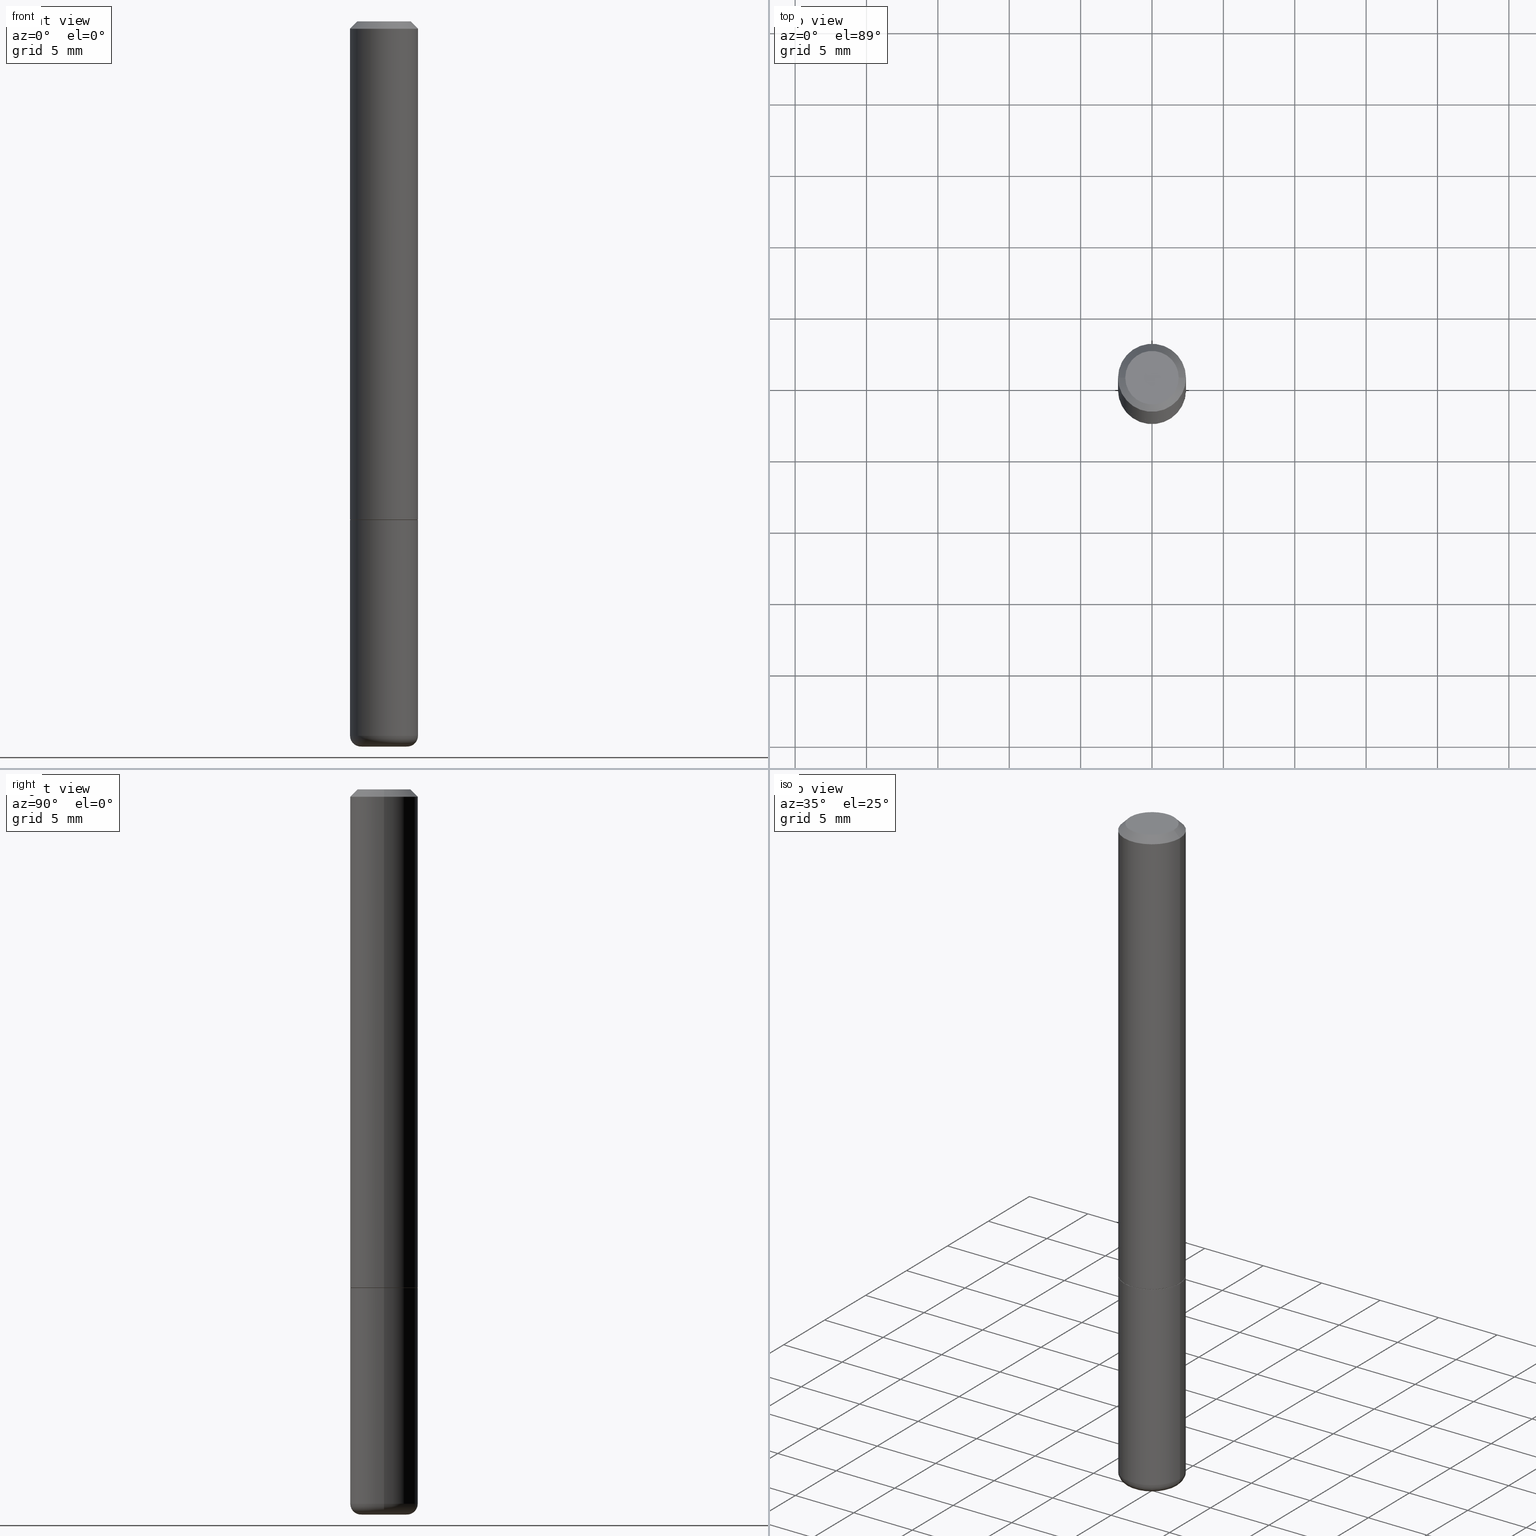
[diagram: canonical four-view strip — front | top / right | iso, engineering-drawing reading convention]
A machine part, canonical four-view strip (front | top / right | iso — engineering-drawing reading convention). The complete STEP part file that produces these views, byte-faithful:
ISO-10303-21;
HEADER;
FILE_DESCRIPTION (( 'STEP AP203' ),
    '1' );
FILE_NAME ('38013.STEP',
    '2023-03-22T20:13:49',
    ( '' ),
    ( '' ),
    'SwSTEP 2.0',
    'SolidWorks 2022',
    '' );
FILE_SCHEMA (( 'CONFIG_CONTROL_DESIGN' ));
ENDSEC;

DATA;
#1 = FACE_OUTER_BOUND ( 'NONE', #280, .T. ) ;
#2 = DIRECTION ( 'NONE',  ( -1.000000000000000000, 6.982962677686265922E-15, 0.000000000000000000 ) ) ;
#3 = CARTESIAN_POINT ( 'NONE',  ( 1.011612679909314432E-27, -1.444314801770192841E-13, -41.36682002856548479 ) ) ;
#4 = DATE_AND_TIME ( #437, #41 ) ;
#5 = CARTESIAN_POINT ( 'NONE',  ( 4.890937612370283668E-31, -6.982962677686305168E-17, -0.02000000000000004205 ) ) ;
#6 = CARTESIAN_POINT ( 'NONE',  ( 0.09375000000000001388, -5.455439591942412434E-15, -1.375000000000000000 ) ) ;
#7 = DIRECTION ( 'NONE',  ( -2.445468806185136597E-29, 3.491481338843145583E-15, 1.000000000000000000 ) ) ;
#8 = AXIS2_PLACEMENT_3D ( 'NONE', #199, #17, #128 ) ;
#9 =( GEOMETRIC_REPRESENTATION_CONTEXT ( 3 ) GLOBAL_UNCERTAINTY_ASSIGNED_CONTEXT ( ( #343 ) ) GLOBAL_UNIT_ASSIGNED_CONTEXT ( ( #396, #168, #131 ) ) REPRESENTATION_CONTEXT ( 'NONE', 'WORKASPACE' ) );
#10 = VERTEX_POINT ( 'NONE', #58 ) ;
#11 = CARTESIAN_POINT ( 'NONE',  ( 0.09374999999999981959, -7.130013140679429031E-16, -0.02000000000000004205 ) ) ;
#12 = DIRECTION ( 'NONE',  ( -1.000000000000000000, 6.982962677686267499E-15, 0.000000000000000000 ) ) ;
#13 = PRODUCT_RELATED_PRODUCT_CATEGORY ( 'detail', '', ( #260 ) ) ;
#14 = VERTEX_POINT ( 'NONE', #67 ) ;
#15 = CARTESIAN_POINT ( 'NONE',  ( 4.890937612370273194E-29, -6.982962677686291165E-15, -2.000000000000000000 ) ) ;
#16 = EDGE_LOOP ( 'NONE', ( #433, #271, #330, #378 ) ) ;
#17 = DIRECTION ( 'NONE',  ( 2.438088387897960049E-29, -3.491481338843145188E-15, -1.000000000000000000 ) ) ;
#18 = ORIENTED_EDGE ( 'NONE', *, *, #290, .F. ) ;
#19 = VECTOR ( 'NONE', #393, 39.37007874015748854 ) ;
#20 = PERSON_AND_ORGANIZATION ( #182, #273 ) ;
#21 = AXIS2_PLACEMENT_3D ( 'NONE', #255, #122, #2 ) ;
#22 = CARTESIAN_POINT ( 'NONE',  ( -0.09374999999999991673, 6.661338147750933326E-16, -4.611501647113969791E-30 ) ) ;
#23 = EDGE_CURVE ( 'NONE', #93, #312, #208, .T. ) ;
#24 = CARTESIAN_POINT ( 'NONE',  ( 0.09274999999999999911, -5.448456629264727208E-15, -1.375000000000000000 ) ) ;
#25 = PERSON_AND_ORGANIZATION ( #182, #273 ) ;
#26 = EDGE_CURVE ( 'NONE', #328, #10, #400, .T. ) ;
#27 = ORIENTED_EDGE ( 'NONE', *, *, #48, .F. ) ;
#28 = CARTESIAN_POINT ( 'NONE',  ( -0.09374999999999988898, 6.661338147750931354E-16, -4.611501647113968390E-30 ) ) ;
#29 = APPROVAL_DATE_TIME ( #375, #144 ) ;
#30 = CALENDAR_DATE ( 2023, 22, 3 ) ;
#31 = CARTESIAN_POINT ( 'NONE',  ( -0.09375000000000001388, -5.173440498747517472E-15, -1.375000000000000000 ) ) ;
#32 = APPROVAL_DATE_TIME ( #72, #197 ) ;
#33 = AXIS2_PLACEMENT_3D ( 'NONE', #225, #262, #420 ) ;
#34 = AXIS2_PLACEMENT_3D ( 'NONE', #107, #382, #71 ) ;
#35 = CC_DESIGN_SECURITY_CLASSIFICATION ( #186, ( #373 ) ) ;
#36 = CARTESIAN_POINT ( 'NONE',  ( 4.890937612370273194E-29, -6.982962677686291165E-15, -2.000000000000000000 ) ) ;
#37 = CARTESIAN_POINT ( 'NONE',  ( 3.362519608504562260E-29, -4.800786840909324930E-15, -1.375000000000000000 ) ) ;
#38 =( LENGTH_UNIT ( ) NAMED_UNIT ( * ) SI_UNIT ( $, .METRE. ) );
#39 = DIRECTION ( 'NONE',  ( -2.445468806185136597E-29, 3.491481338843145583E-15, 1.000000000000000000 ) ) ;
#40 = VECTOR ( 'NONE', #380, 39.37007874015748854 ) ;
#41 = LOCAL_TIME ( 16, 13, 49.00000000000000000, #142 ) ;
#42 = CARTESIAN_POINT ( 'NONE',  ( 5.149934974793610063E-16, 0.07374999999999984346, -2.574967487396814399E-16 ) ) ;
#43 = APPLICATION_CONTEXT ( 'configuration controlled 3d designs of mechanical parts and assemblies' ) ;
#44 = CARTESIAN_POINT ( 'NONE',  ( -8.835394387282807583E-19, -6.971584946974175960E-15, -1.996741288408006909 ) ) ;
#45 = CARTESIAN_POINT ( 'NONE',  ( 0.000000000000000000, 0.000000000000000000, 0.000000000000000000 ) ) ;
#46 = CC_DESIGN_DATE_AND_TIME_ASSIGNMENT ( #4, #289, ( #230 ) ) ;
#47 = LINE ( 'NONE', #323, #19 ) ;
#48 = EDGE_CURVE ( 'NONE', #96, #250, #372, .T. ) ;
#49 = EDGE_LOOP ( 'NONE', ( #261, #68, #264, #138 ) ) ;
#50 = EDGE_CURVE ( 'NONE', #121, #105, #342, .T. ) ;
#51 = EDGE_LOOP ( 'NONE', ( #239, #124, #308 ) ) ;
#52 = FACE_OUTER_BOUND ( 'NONE', #160, .T. ) ;
#53 = ORIENTED_EDGE ( 'NONE', *, *, #399, .T. ) ;
#54 = CIRCLE ( 'NONE', #33, 0.09374999999999997224 ) ;
#55 = APPROVAL_PERSON_ORGANIZATION ( #101, #144, #70 ) ;
#56 = ORIENTED_EDGE ( 'NONE', *, *, #23, .F. ) ;
#57 = APPROVAL_STATUS ( 'not_yet_approved' ) ;
#58 = CARTESIAN_POINT ( 'NONE',  ( -0.09374999999999984734, -5.173440498747517472E-15, -1.970041113957363033 ) ) ;
#59 = COORDINATED_UNIVERSAL_TIME_OFFSET ( 5, 0, .BEHIND. ) ;
#60 = DIRECTION ( 'NONE',  ( 1.000000000000000000, -6.982962677686265922E-15, 4.876176775795935793E-29 ) ) ;
#61 = ORIENTED_EDGE ( 'NONE', *, *, #50, .T. ) ;
#62 = EDGE_CURVE ( 'NONE', #10, #96, #339, .T. ) ;
#63 = CC_DESIGN_PERSON_AND_ORGANIZATION_ASSIGNMENT ( #64, #441, ( #373 ) ) ;
#64 = PERSON_AND_ORGANIZATION ( #182, #273 ) ;
#65 = AXIS2_PLACEMENT_3D ( 'NONE', #370, #211, #340 ) ;
#66 = DATE_AND_TIME ( #275, #125 ) ;
#67 = CARTESIAN_POINT ( 'NONE',  ( 0.09374999999999997224, -5.451948110603567849E-15, -1.373999999999999666 ) ) ;
#68 = ORIENTED_EDGE ( 'NONE', *, *, #62, .T. ) ;
#69 = CARTESIAN_POINT ( 'NONE',  ( 3.362519608504562260E-29, -4.800786840909324930E-15, -1.375000000000000000 ) ) ;
#70 = APPROVAL_ROLE ( '' ) ;
#71 = DIRECTION ( 'NONE',  ( 1.000000000000000000, -6.982962677686267499E-15, 0.000000000000000000 ) ) ;
#72 = DATE_AND_TIME ( #30, #430 ) ;
#73 = DIRECTION ( 'NONE',  ( 7.105427357601001859E-15, 1.000000000000000000, -3.491481338843145583E-15 ) ) ;
#74 = CARTESIAN_POINT ( 'NONE',  ( 3.362519608504562260E-29, -4.800786840909324930E-15, -1.375000000000000000 ) ) ;
#75 = VECTOR ( 'NONE', #316, 39.37007874015748143 ) ;
#76 = CIRCLE ( 'NONE', #286, 0.06217992131271191103 ) ;
#77 = FACE_OUTER_BOUND ( 'NONE', #162, .T. ) ;
#78 = DIRECTION ( 'NONE',  ( -2.445468806185136877E-29, 3.491481338843145188E-15, 1.000000000000000000 ) ) ;
#79 = ADVANCED_BREP_SHAPE_REPRESENTATION ( '38013', ( #413, #258, #201 ), #9 ) ;
#80 = ADVANCED_FACE ( 'NONE', ( #173 ), #314, .T. ) ;
#81 = DIRECTION ( 'NONE',  ( 1.000000000000000000, -6.982962677686264344E-15, 0.000000000000000000 ) ) ;
#82 = EDGE_CURVE ( 'NONE', #210, #356, #381, .T. ) ;
#83 = DIRECTION ( 'NONE',  ( 2.445468806185136597E-29, -3.491481338843145583E-15, -1.000000000000000000 ) ) ;
#84 = FACE_OUTER_BOUND ( 'NONE', #16, .T. ) ;
#85 = DIRECTION ( 'NONE',  ( -2.445468806185136597E-29, 3.491481338843145583E-15, 1.000000000000000000 ) ) ;
#86 = DIRECTION ( 'NONE',  ( -2.445468806185136877E-29, 3.491481338843145188E-15, 1.000000000000000000 ) ) ;
#87 = ORIENTED_EDGE ( 'NONE', *, *, #126, .T. ) ;
#88 = DIRECTION ( 'NONE',  ( -2.445468806185136597E-29, 3.491481338843145583E-15, 1.000000000000000000 ) ) ;
#89 = AXIS2_PLACEMENT_3D ( 'NONE', #179, #73, #347 ) ;
#90 = ORIENTED_EDGE ( 'NONE', *, *, #336, .F. ) ;
#91 = ORIENTED_EDGE ( 'NONE', *, *, #190, .F. ) ;
#92 = PLANE ( 'NONE',  #241 ) ;
#93 = VERTEX_POINT ( 'NONE', #24 ) ;
#94 = CIRCLE ( 'NONE', #284, 0.02999999999999984970 ) ;
#95 = CIRCLE ( 'NONE', #346, 0.07374999999999984346 ) ;
#96 = VERTEX_POINT ( 'NONE', #31 ) ;
#97 = CALENDAR_DATE ( 2023, 22, 3 ) ;
#98 = APPROVAL ( #171, 'UNSPECIFIED' ) ;
#99 = EDGE_LOOP ( 'NONE', ( #282, #194, #414, #202 ) ) ;
#100 = ORIENTED_EDGE ( 'NONE', *, *, #429, .F. ) ;
#101 = PERSON_AND_ORGANIZATION ( #182, #273 ) ;
#102 = CARTESIAN_POINT ( 'NONE',  ( -0.09374999999999981959, 5.848231242562232198E-16, -0.02000000000000004205 ) ) ;
#103 = CIRCLE ( 'NONE', #295, 0.09375000000000001388 ) ;
#104 = VECTOR ( 'NONE', #384, 39.37007874015748854 ) ;
#105 = VERTEX_POINT ( 'NONE', #102 ) ;
#106 = DIRECTION ( 'NONE',  ( 1.000000000000000000, -6.982962677686273021E-15, 0.000000000000000000 ) ) ;
#107 = CARTESIAN_POINT ( 'NONE',  ( 4.890937612370283668E-31, -6.982962677686305168E-17, -0.02000000000000004205 ) ) ;
#108 = LINE ( 'NONE', #114, #104 ) ;
#109 = CIRCLE ( 'NONE', #371, 0.09374999999999997224 ) ;
#110 = DIRECTION ( 'NONE',  ( 1.000000000000000000, -6.982962677686265133E-15, 4.876176775795935793E-29 ) ) ;
#111 = DIRECTION ( 'NONE',  ( -2.445468806185136597E-29, 3.491481338843145583E-15, 1.000000000000000000 ) ) ;
#112 = EDGE_CURVE ( 'NONE', #356, #105, #299, .T. ) ;
#113 = EDGE_CURVE ( 'NONE', #312, #93, #218, .T. ) ;
#114 = CARTESIAN_POINT ( 'NONE',  ( 8.835394388259402362E-19, -6.971584946974175960E-15, -1.996741288408006909 ) ) ;
#115 = CARTESIAN_POINT ( 'NONE',  ( 0.09374999999999991673, -6.546527510330869125E-16, 4.571415727308685602E-30 ) ) ;
#116 = PERSON_AND_ORGANIZATION ( #182, #273 ) ;
#117 = DIRECTION ( 'NONE',  ( 1.000000000000000000, -6.982962677686266711E-15, 4.876176775795935793E-29 ) ) ;
#118 = CIRCLE ( 'NONE', #233, 0.09374999999999984734 ) ;
#119 = DIRECTION ( 'NONE',  ( 1.000000000000000000, -6.982962677686266711E-15, 4.876176775795935793E-29 ) ) ;
#120 = DIRECTION ( 'NONE',  ( 1.000000000000000000, -6.982962677686263555E-15, 4.883557194083111219E-29 ) ) ;
#121 = VERTEX_POINT ( 'NONE', #440 ) ;
#122 = DIRECTION ( 'NONE',  ( 2.445468806185136597E-29, -3.491481338843145583E-15, -1.000000000000000000 ) ) ;
#123 = CONICAL_SURFACE ( 'NONE', #409, 0.09374999999999981959, 0.7853981633974466137 ) ;
#124 = ORIENTED_EDGE ( 'NONE', *, *, #150, .T. ) ;
#125 = LOCAL_TIME ( 16, 13, 49.00000000000000000, #408 ) ;
#126 = EDGE_CURVE ( 'NONE', #250, #96, #103, .T. ) ;
#127 = ORIENTED_EDGE ( 'NONE', *, *, #203, .F. ) ;
#128 = DIRECTION ( 'NONE',  ( -1.000000000000000000, 6.982962677686265922E-15, -4.876176775795935793E-29 ) ) ;
#129 = EDGE_LOOP ( 'NONE', ( #438, #61, #237, #167 ) ) ;
#130 = CC_DESIGN_DATE_AND_TIME_ASSIGNMENT ( #367, #205, ( #186 ) ) ;
#131 =( NAMED_UNIT ( * ) SI_UNIT ( $, .STERADIAN. ) SOLID_ANGLE_UNIT ( ) );
#132 = DIRECTION ( 'NONE',  ( 1.000000000000000000, -6.982962677686260400E-15, 0.000000000000000000 ) ) ;
#133 = ORIENTED_EDGE ( 'NONE', *, *, #290, .T. ) ;
#134 = AXIS2_PLACEMENT_3D ( 'NONE', #161, #195, #221 ) ;
#135 = PERSON_AND_ORGANIZATION_ROLE ( 'design_supplier' ) ;
#136 = EDGE_CURVE ( 'NONE', #360, #210, #95, .T. ) ;
#137 = FACE_OUTER_BOUND ( 'NONE', #302, .T. ) ;
#138 = ORIENTED_EDGE ( 'NONE', *, *, #263, .F. ) ;
#139 = PERSON_AND_ORGANIZATION ( #182, #273 ) ;
#140 = ADVANCED_FACE ( 'NONE', ( #427 ), #272, .F. ) ;
#141 = EDGE_LOOP ( 'NONE', ( #406, #245, #164, #91 ) ) ;
#142 = COORDINATED_UNIVERSAL_TIME_OFFSET ( 5, 0, .BEHIND. ) ;
#143 = EDGE_LOOP ( 'NONE', ( #53, #176, #434, #345 ) ) ;
#144 = APPROVAL ( #214, 'UNSPECIFIED' ) ;
#145 = EDGE_LOOP ( 'NONE', ( #18, #442, #157, #198 ) ) ;
#146 = DIRECTION ( 'NONE',  ( -2.445468806185136597E-29, 3.491481338843145583E-15, 1.000000000000000000 ) ) ;
#147 = APPLICATION_CONTEXT ( 'configuration controlled 3d designs of mechanical parts and assemblies' ) ;
#148 = DIRECTION ( 'NONE',  ( 2.438088387897960049E-29, -3.491481338843145188E-15, -1.000000000000000000 ) ) ;
#149 = CIRCLE ( 'NONE', #297, 0.07374999999999984346 ) ;
#150 = EDGE_CURVE ( 'NONE', #374, #431, #423, .T. ) ;
#151 = ADVANCED_FACE ( 'NONE', ( #257 ), #244, .T. ) ;
#152 = CC_DESIGN_APPROVAL ( #144, ( #230 ) ) ;
#153 = DIRECTION ( 'NONE',  ( -2.445468806185136597E-29, 3.491481338843145583E-15, 1.000000000000000000 ) ) ;
#154 = DIRECTION ( 'NONE',  ( 1.000000000000000000, -6.982962677686263555E-15, 4.883557194083111219E-29 ) ) ;
#155 = DIRECTION ( 'NONE',  ( 2.445468806185136597E-29, -3.491481338843145583E-15, -1.000000000000000000 ) ) ;
#156 = AXIS2_PLACEMENT_3D ( 'NONE', #191, #256, #120 ) ;
#157 = ORIENTED_EDGE ( 'NONE', *, *, #112, .T. ) ;
#158 = CONICAL_SURFACE ( 'NONE', #21, 751.2258538476835383, 1.518436449235074814 ) ;
#159 = CARTESIAN_POINT ( 'NONE',  ( 0.06375000000000000111, -7.323525656838395472E-15, -1.970041113957363033 ) ) ;
#160 = EDGE_LOOP ( 'NONE', ( #87, #362 ) ) ;
#161 = CARTESIAN_POINT ( 'NONE',  ( 0.000000000000000000, 0.000000000000000000, 0.000000000000000000 ) ) ;
#162 = EDGE_LOOP ( 'NONE', ( #337, #248, #267, #27 ) ) ;
#163 = ADVANCED_FACE ( 'NONE', ( #84 ), #123, .T. ) ;
#164 = ORIENTED_EDGE ( 'NONE', *, *, #311, .T. ) ;
#165 = CIRCLE ( 'NONE', #301, 0.06217992131271191103 ) ;
#166 = AXIS2_PLACEMENT_3D ( 'NONE', #287, #88, #110 ) ;
#167 = ORIENTED_EDGE ( 'NONE', *, *, #177, .F. ) ;
#168 =( NAMED_UNIT ( * ) PLANE_ANGLE_UNIT ( ) SI_UNIT ( $, .RADIAN. ) );
#169 = CIRCLE ( 'NONE', #417, 0.09374999999999981959 ) ;
#170 = LOCAL_TIME ( 16, 13, 49.00000000000000000, #303 ) ;
#171 = APPROVAL_STATUS ( 'not_yet_approved' ) ;
#172 = APPROVAL_DATE_TIME ( #66, #98 ) ;
#173 = FACE_OUTER_BOUND ( 'NONE', #99, .T. ) ;
#174 = DIRECTION ( 'NONE',  ( -2.445468806185136877E-29, 3.491481338843145188E-15, 1.000000000000000000 ) ) ;
#175 = PERSON_AND_ORGANIZATION ( #182, #273 ) ;
#176 = ORIENTED_EDGE ( 'NONE', *, *, #385, .T. ) ;
#177 = EDGE_CURVE ( 'NONE', #14, #356, #288, .T. ) ;
#178 = CARTESIAN_POINT ( 'NONE',  ( 3.362519608504562260E-29, -4.800786840909324930E-15, -1.375000000000000000 ) ) ;
#179 = CARTESIAN_POINT ( 'NONE',  ( -0.06375000000000000111, -6.425390792088831816E-15, -1.970041113957363033 ) ) ;
#180 = DIRECTION ( 'NONE',  ( -2.445468806185136597E-29, 3.491481338843145583E-15, 1.000000000000000000 ) ) ;
#181 = CC_DESIGN_PERSON_AND_ORGANIZATION_ASSIGNMENT ( #175, #315, ( #230 ) ) ;
#182 = PERSON ( 'UNSPECIFIED', 'UNSPECIFIED', 'UNSPECIFIED', ('UNSPECIFIED'), ('UNSPECIFIED'), ('UNSPECIFIED') ) ;
#183 = DIRECTION ( 'NONE',  ( -2.445468806185136597E-29, 3.491481338843145583E-15, 1.000000000000000000 ) ) ;
#184 = DIRECTION ( 'NONE',  ( 0.7071067811864147901, -2.468850131080866299E-15, 0.7071067811866802444 ) ) ;
#185 = AXIS2_PLACEMENT_3D ( 'NONE', #436, #213, #207 ) ;
#186 = SECURITY_CLASSIFICATION ( '', '', #274 ) ;
#187 = DIRECTION ( 'NONE',  ( -1.000000000000000000, 6.982962677686265922E-15, -4.876176775795935793E-29 ) ) ;
#188 = DIRECTION ( 'NONE',  ( -2.445468806185136597E-29, 3.491481338843145583E-15, 1.000000000000000000 ) ) ;
#189 = CARTESIAN_POINT ( 'NONE',  ( 3.360074139698376657E-29, -4.797295359570480345E-15, -1.373999999999999666 ) ) ;
#190 = EDGE_CURVE ( 'NONE', #121, #14, #109, .T. ) ;
#191 = CARTESIAN_POINT ( 'NONE',  ( 4.817674091084949095E-29, -6.878361786135895495E-15, -1.970041113957363033 ) ) ;
#192 = VECTOR ( 'NONE', #392, 39.37007874015748854 ) ;
#193 = FACE_OUTER_BOUND ( 'NONE', #395, .T. ) ;
#194 = ORIENTED_EDGE ( 'NONE', *, *, #190, .T. ) ;
#195 = DIRECTION ( 'NONE',  ( -2.445468806185136597E-29, 3.491481338843145583E-15, 1.000000000000000000 ) ) ;
#196 = ADVANCED_FACE ( 'NONE', ( #232 ), #293, .T. ) ;
#197 = APPROVAL ( #57, 'UNSPECIFIED' ) ;
#198 = ORIENTED_EDGE ( 'NONE', *, *, #235, .F. ) ;
#199 = CARTESIAN_POINT ( 'NONE',  ( 6.546527510331211293E-16, 0.09374999999999521216, -1.375000000000000222 ) ) ;
#200 = AXIS2_PLACEMENT_3D ( 'NONE', #259, #7, #422 ) ;
#201 = AXIS2_PLACEMENT_3D ( 'NONE', #432, #335, #402 ) ;
#202 = ORIENTED_EDGE ( 'NONE', *, *, #220, .F. ) ;
#203 = EDGE_CURVE ( 'NONE', #14, #121, #54, .T. ) ;
#204 = MECHANICAL_CONTEXT ( 'NONE', #43, 'mechanical' ) ;
#205 = DATE_TIME_ROLE ( 'classification_date' ) ;
#206 = AXIS2_PLACEMENT_3D ( 'NONE', #350, #188, #351 ) ;
#207 = DIRECTION ( 'NONE',  ( 1.000000000000000000, -6.982962677686261189E-15, 0.000000000000000000 ) ) ;
#208 = CIRCLE ( 'NONE', #227, 0.09274999999999999911 ) ;
#209 = CONICAL_SURFACE ( 'NONE', #353, 0.09274999999999999911, 0.7853981633972606513 ) ;
#210 = VERTEX_POINT ( 'NONE', #424 ) ;
#211 = DIRECTION ( 'NONE',  ( -2.445468806185136597E-29, 3.491481338843145583E-15, 1.000000000000000000 ) ) ;
#212 = CC_DESIGN_PERSON_AND_ORGANIZATION_ASSIGNMENT ( #309, #379, ( #260 ) ) ;
#213 = DIRECTION ( 'NONE',  ( -2.445468806185136597E-29, 3.491481338843145583E-15, 1.000000000000000000 ) ) ;
#214 = APPROVAL_STATUS ( 'not_yet_approved' ) ;
#215 = DIRECTION ( 'NONE',  ( -2.445468806185136597E-29, 3.491481338843145583E-15, 1.000000000000000000 ) ) ;
#216 = CARTESIAN_POINT ( 'NONE',  ( 4.883585507116225315E-29, -6.970701407535398153E-15, -1.996741288408006909 ) ) ;
#217 = DIRECTION ( 'NONE',  ( -2.445468806185136597E-29, 3.491481338843145583E-15, 1.000000000000000000 ) ) ;
#218 = CIRCLE ( 'NONE', #279, 0.09274999999999999911 ) ;
#219 = AXIS2_PLACEMENT_3D ( 'NONE', #42, #148, #187 ) ;
#220 = EDGE_CURVE ( 'NONE', #105, #356, #169, .T. ) ;
#221 = DIRECTION ( 'NONE',  ( 1.000000000000000000, -6.982962677686266711E-15, 4.876176775795935793E-29 ) ) ;
#222 = CARTESIAN_POINT ( 'NONE',  ( 0.06217992131271191103, -7.417162747514426598E-15, -2.000000000000000000 ) ) ;
#223 = CARTESIAN_POINT ( 'NONE',  ( 0.000000000000000000, 0.000000000000000000, 0.000000000000000000 ) ) ;
#224 = PLANE ( 'NONE',  #219 ) ;
#225 = CARTESIAN_POINT ( 'NONE',  ( 3.360074139698376657E-29, -4.797295359570480345E-15, -1.373999999999999666 ) ) ;
#226 = TOROIDAL_SURFACE ( 'NONE', #292, 0.06375000000000000111, 0.02999999999999986011 ) ;
#227 = AXIS2_PLACEMENT_3D ( 'NONE', #69, #401, #243 ) ;
#228 = APPROVAL_PERSON_ORGANIZATION ( #20, #98, #310 ) ;
#229 = DIRECTION ( 'NONE',  ( -1.000000000000000000, 6.982962677686265922E-15, 0.000000000000000000 ) ) ;
#230 = PRODUCT_DEFINITION ( 'UNKNOWN', '', #373, #412 ) ;
#231 = LINE ( 'NONE', #355, #407 ) ;
#232 = FACE_OUTER_BOUND ( 'NONE', #49, .T. ) ;
#233 = AXIS2_PLACEMENT_3D ( 'NONE', #348, #180, #81 ) ;
#234 = FACE_OUTER_BOUND ( 'NONE', #129, .T. ) ;
#235 = EDGE_CURVE ( 'NONE', #360, #105, #47, .T. ) ;
#236 = ADVANCED_FACE ( 'NONE', ( #193 ), #226, .T. ) ;
#237 = ORIENTED_EDGE ( 'NONE', *, *, #112, .F. ) ;
#238 = ORIENTED_EDGE ( 'NONE', *, *, #136, .T. ) ;
#239 = ORIENTED_EDGE ( 'NONE', *, *, #426, .F. ) ;
#240 = CARTESIAN_POINT ( 'NONE',  ( -0.09274999999999999911, -4.136459999143609611E-15, -1.375000000000000000 ) ) ;
#241 = AXIS2_PLACEMENT_3D ( 'NONE', #405, #368, #60 ) ;
#242 = ORIENTED_EDGE ( 'NONE', *, *, #361, .T. ) ;
#243 = DIRECTION ( 'NONE',  ( 1.000000000000000000, -6.982962677686273021E-15, 0.000000000000000000 ) ) ;
#244 = TOROIDAL_SURFACE ( 'NONE', #156, 0.06375000000000000111, 0.02999999999999986011 ) ;
#245 = ORIENTED_EDGE ( 'NONE', *, *, #113, .T. ) ;
#246 = CALENDAR_DATE ( 2023, 22, 3 ) ;
#247 = EDGE_CURVE ( 'NONE', #359, #328, #94, .T. ) ;
#248 = ORIENTED_EDGE ( 'NONE', *, *, #429, .T. ) ;
#249 = CARTESIAN_POINT ( 'NONE',  ( 0.09374999999999981959, -7.130013140679429031E-16, -0.02000000000000004205 ) ) ;
#250 = VERTEX_POINT ( 'NONE', #6 ) ;
#251 = CARTESIAN_POINT ( 'NONE',  ( -0.07374999999999984346, 5.499083108677921624E-16, -3.723527850031186263E-30 ) ) ;
#252 = FACE_OUTER_BOUND ( 'NONE', #300, .T. ) ;
#253 = CONICAL_SURFACE ( 'NONE', #358, 0.09374999999999981959, 0.7853981633974466137 ) ;
#254 = DIRECTION ( 'NONE',  ( -1.000000000000000000, 6.982962677686267499E-15, 0.000000000000000000 ) ) ;
#255 = CARTESIAN_POINT ( 'NONE',  ( 1.011612679909314432E-27, -1.444314801770192841E-13, -41.36682002856548479 ) ) ;
#256 = DIRECTION ( 'NONE',  ( -2.445468806185136597E-29, 3.491481338843145583E-15, 1.000000000000000000 ) ) ;
#257 = FACE_OUTER_BOUND ( 'NONE', #143, .T. ) ;
#258 = MANIFOLD_SOLID_BREP ( 'Body-Move/Copy2[2]', #266 ) ;
#259 = CARTESIAN_POINT ( 'NONE',  ( 0.000000000000000000, 0.000000000000000000, 0.000000000000000000 ) ) ;
#260 = PRODUCT ( '38013', '38013', '', ( #204 ) ) ;
#261 = ORIENTED_EDGE ( 'NONE', *, *, #26, .T. ) ;
#262 = DIRECTION ( 'NONE',  ( -2.445468806185136597E-29, 3.491481338843145583E-15, 1.000000000000000000 ) ) ;
#263 = EDGE_CURVE ( 'NONE', #328, #250, #296, .T. ) ;
#264 = ORIENTED_EDGE ( 'NONE', *, *, #126, .F. ) ;
#265 = DIRECTION ( 'NONE',  ( -0.7071067811864147901, 7.493145998869874533E-15, 0.7071067811866802444 ) ) ;
#266 = CLOSED_SHELL ( 'NONE', ( #277, #404, #418, #163, #80, #376, #333, #435 ) ) ;
#267 = ORIENTED_EDGE ( 'NONE', *, *, #263, .T. ) ;
#268 = VECTOR ( 'NONE', #265, 39.37007874015748143 ) ;
#269 = EDGE_LOOP ( 'NONE', ( #332, #242, #127, #276 ) ) ;
#270 = CARTESIAN_POINT ( 'NONE',  ( 0.09374999999999984734, -7.533014537168982211E-15, -1.970041113957363033 ) ) ;
#271 = ORIENTED_EDGE ( 'NONE', *, *, #136, .F. ) ;
#272 = CONICAL_SURFACE ( 'NONE', #294, 751.2258538476835383, 1.518436449235074814 ) ;
#273 = ORGANIZATION ( 'UNSPECIFIED', 'UNSPECIFIED', '' ) ;
#274 = SECURITY_CLASSIFICATION_LEVEL ( 'unclassified' ) ;
#275 = CALENDAR_DATE ( 2023, 22, 3 ) ;
#276 = ORIENTED_EDGE ( 'NONE', *, *, #311, .F. ) ;
#277 = ADVANCED_FACE ( 'NONE', ( #326 ), #397, .T. ) ;
#278 = CARTESIAN_POINT ( 'NONE',  ( 0.000000000000000000, 0.000000000000000000, 0.000000000000000000 ) ) ;
#279 = AXIS2_PLACEMENT_3D ( 'NONE', #178, #215, #319 ) ;
#280 = EDGE_LOOP ( 'NONE', ( #238, #133 ) ) ;
#281 = DIRECTION ( 'NONE',  ( 1.000000000000000000, -6.982962677686265133E-15, 4.876176775795935793E-29 ) ) ;
#282 = ORIENTED_EDGE ( 'NONE', *, *, #50, .F. ) ;
#283 = CYLINDRICAL_SURFACE ( 'NONE', #166, 0.09374999999999988898 ) ;
#284 = AXIS2_PLACEMENT_3D ( 'NONE', #159, #285, #387 ) ;
#285 = DIRECTION ( 'NONE',  ( -6.982962677686266711E-15, -1.000000000000000000, 3.491481338843145583E-15 ) ) ;
#286 = AXIS2_PLACEMENT_3D ( 'NONE', #15, #318, #132 ) ;
#287 = CARTESIAN_POINT ( 'NONE',  ( 0.000000000000000000, 0.000000000000000000, 0.000000000000000000 ) ) ;
#288 = LINE ( 'NONE', #354, #391 ) ;
#289 = DATE_TIME_ROLE ( 'creation_date' ) ;
#290 = EDGE_CURVE ( 'NONE', #210, #360, #149, .T. ) ;
#291 = CC_DESIGN_PERSON_AND_ORGANIZATION_ASSIGNMENT ( #139, #135, ( #373 ) ) ;
#292 = AXIS2_PLACEMENT_3D ( 'NONE', #329, #111, #154 ) ;
#293 = CYLINDRICAL_SURFACE ( 'NONE', #200, 0.09374999999999991673 ) ;
#294 = AXIS2_PLACEMENT_3D ( 'NONE', #3, #155, #229 ) ;
#295 = AXIS2_PLACEMENT_3D ( 'NONE', #74, #217, #394 ) ;
#296 = LINE ( 'NONE', #115, #344 ) ;
#297 = AXIS2_PLACEMENT_3D ( 'NONE', #223, #39, #119 ) ;
#298 = LENGTH_MEASURE_WITH_UNIT ( LENGTH_MEASURE( 0.02539999999999999897 ), #38 );
#299 = CIRCLE ( 'NONE', #34, 0.09374999999999981959 ) ;
#300 = EDGE_LOOP ( 'NONE', ( #320, #365, #90 ) ) ;
#301 = AXIS2_PLACEMENT_3D ( 'NONE', #36, #146, #388 ) ;
#302 = EDGE_LOOP ( 'NONE', ( #56, #334 ) ) ;
#303 = COORDINATED_UNIVERSAL_TIME_OFFSET ( 5, 0, .BEHIND. ) ;
#304 = CC_DESIGN_PERSON_AND_ORGANIZATION_ASSIGNMENT ( #25, #403, ( #186 ) ) ;
#305 = PLANE ( 'NONE',  #8 ) ;
#306 = COORDINATED_UNIVERSAL_TIME_OFFSET ( 5, 0, .BEHIND. ) ;
#307 = DIMENSIONAL_EXPONENTS ( 1.000000000000000000, 0.000000000000000000, 0.000000000000000000, 0.000000000000000000, 0.000000000000000000, 0.000000000000000000, 0.000000000000000000 ) ;
#308 = ORIENTED_EDGE ( 'NONE', *, *, #399, .F. ) ;
#309 = PERSON_AND_ORGANIZATION ( #182, #273 ) ;
#310 = APPROVAL_ROLE ( '' ) ;
#311 = EDGE_CURVE ( 'NONE', #93, #14, #231, .T. ) ;
#312 = VERTEX_POINT ( 'NONE', #240 ) ;
#313 = APPLICATION_PROTOCOL_DEFINITION ( 'international standard', 'config_control_design', 1994, #147 ) ;
#314 = CYLINDRICAL_SURFACE ( 'NONE', #425, 0.09374999999999988898 ) ;
#315 = PERSON_AND_ORGANIZATION_ROLE ( 'creator' ) ;
#316 = DIRECTION ( 'NONE',  ( -2.445468806185136877E-29, 3.491481338843145188E-15, 1.000000000000000000 ) ) ;
#317 = CC_DESIGN_APPROVAL ( #197, ( #373 ) ) ;
#318 = DIRECTION ( 'NONE',  ( -2.445468806185136597E-29, 3.491481338843145583E-15, 1.000000000000000000 ) ) ;
#319 = DIRECTION ( 'NONE',  ( 1.000000000000000000, -6.982962677686273021E-15, 0.000000000000000000 ) ) ;
#320 = ORIENTED_EDGE ( 'NONE', *, *, #150, .F. ) ;
#321 = LINE ( 'NONE', #419, #268 ) ;
#322 = CARTESIAN_POINT ( 'NONE',  ( -0.06217992131271191103, -6.376687867529137244E-15, -2.000000000000000000 ) ) ;
#323 = CARTESIAN_POINT ( 'NONE',  ( -0.09374999999999981959, 5.848231242562232198E-16, -0.02000000000000004205 ) ) ;
#324 = ADVANCED_FACE ( 'NONE', ( #52 ), #305, .F. ) ;
#325 = DIRECTION ( 'NONE',  ( -2.445468806185136597E-29, 3.491481338843145583E-15, 1.000000000000000000 ) ) ;
#326 = FACE_OUTER_BOUND ( 'NONE', #269, .T. ) ;
#327 = CARTESIAN_POINT ( 'NONE',  ( 4.890937612370283668E-31, -6.982962677686305168E-17, -0.02000000000000004205 ) ) ;
#328 = VERTEX_POINT ( 'NONE', #270 ) ;
#329 = CARTESIAN_POINT ( 'NONE',  ( 4.817674091084949095E-29, -6.878361786135895495E-15, -1.970041113957363033 ) ) ;
#330 = ORIENTED_EDGE ( 'NONE', *, *, #235, .T. ) ;
#331 = ORIENTED_EDGE ( 'NONE', *, *, #336, .T. ) ;
#332 = ORIENTED_EDGE ( 'NONE', *, *, #23, .T. ) ;
#333 = ADVANCED_FACE ( 'NONE', ( #137 ), #92, .F. ) ;
#334 = ORIENTED_EDGE ( 'NONE', *, *, #113, .F. ) ;
#335 = DIRECTION ( 'NONE',  ( 0.000000000000000000, 0.000000000000000000, 1.000000000000000000 ) ) ;
#336 = EDGE_CURVE ( 'NONE', #431, #359, #76, .T. ) ;
#337 = ORIENTED_EDGE ( 'NONE', *, *, #62, .F. ) ;
#338 = APPROVAL_PERSON_ORGANIZATION ( #116, #197, #341 ) ;
#339 = LINE ( 'NONE', #22, #352 ) ;
#340 = DIRECTION ( 'NONE',  ( 1.000000000000000000, -6.982962677686264344E-15, 0.000000000000000000 ) ) ;
#341 = APPROVAL_ROLE ( '' ) ;
#342 = LINE ( 'NONE', #28, #75 ) ;
#343 = UNCERTAINTY_MEASURE_WITH_UNIT (LENGTH_MEASURE( 1.000000000000000082E-05 ), #396, 'distance_accuracy_value', 'NONE');
#344 = VECTOR ( 'NONE', #78, 39.37007874015748143 ) ;
#345 = ORIENTED_EDGE ( 'NONE', *, *, #247, .F. ) ;
#346 = AXIS2_PLACEMENT_3D ( 'NONE', #45, #153, #117 ) ;
#347 = DIRECTION ( 'NONE',  ( -1.000000000000000000, 7.105427357600993970E-15, 0.000000000000000000 ) ) ;
#348 = CARTESIAN_POINT ( 'NONE',  ( 4.817674091084949095E-29, -6.878361786135895495E-15, -1.970041113957363033 ) ) ;
#349 = ADVANCED_FACE ( 'NONE', ( #252 ), #158, .F. ) ;
#350 = CARTESIAN_POINT ( 'NONE',  ( 3.362519608504562260E-29, -4.800786840909324930E-15, -1.375000000000000000 ) ) ;
#351 = DIRECTION ( 'NONE',  ( 1.000000000000000000, -6.982962677686273021E-15, 0.000000000000000000 ) ) ;
#352 = VECTOR ( 'NONE', #174, 39.37007874015748143 ) ;
#353 = AXIS2_PLACEMENT_3D ( 'NONE', #37, #183, #106 ) ;
#354 = CARTESIAN_POINT ( 'NONE',  ( 0.09374999999999988898, -6.546527510330866166E-16, 4.571415727308684201E-30 ) ) ;
#355 = CARTESIAN_POINT ( 'NONE',  ( 0.09274999999999999911, -5.448456629264727208E-15, -1.375000000000000000 ) ) ;
#356 = VERTEX_POINT ( 'NONE', #11 ) ;
#357 = DIRECTION ( 'NONE',  ( 1.000000000000000000, -6.982962677686267499E-15, 0.000000000000000000 ) ) ;
#358 = AXIS2_PLACEMENT_3D ( 'NONE', #421, #439, #254 ) ;
#359 = VERTEX_POINT ( 'NONE', #222 ) ;
#360 = VERTEX_POINT ( 'NONE', #251 ) ;
#361 = EDGE_CURVE ( 'NONE', #312, #121, #321, .T. ) ;
#362 = ORIENTED_EDGE ( 'NONE', *, *, #48, .T. ) ;
#363 = CLOSED_SHELL ( 'NONE', ( #349, #151, #196, #324, #428, #236, #140 ) ) ;
#364 = ORIENTED_EDGE ( 'NONE', *, *, #247, .T. ) ;
#365 = ORIENTED_EDGE ( 'NONE', *, *, #426, .T. ) ;
#366 = APPLICATION_PROTOCOL_DEFINITION ( 'international standard', 'config_control_design', 1994, #43 ) ;
#367 = DATE_AND_TIME ( #97, #410 ) ;
#368 = DIRECTION ( 'NONE',  ( -2.438088387897960049E-29, 3.491481338843145188E-15, 1.000000000000000000 ) ) ;
#369 = SHAPE_DEFINITION_REPRESENTATION ( #390, #79 ) ;
#370 = CARTESIAN_POINT ( 'NONE',  ( 4.817674091084949095E-29, -6.878361786135895495E-15, -1.970041113957363033 ) ) ;
#371 = AXIS2_PLACEMENT_3D ( 'NONE', #189, #325, #389 ) ;
#372 = CIRCLE ( 'NONE', #185, 0.09375000000000001388 ) ;
#373 = PRODUCT_DEFINITION_FORMATION_WITH_SPECIFIED_SOURCE ( 'ANY', '', #260, .NOT_KNOWN. ) ;
#374 = VERTEX_POINT ( 'NONE', #216 ) ;
#375 = DATE_AND_TIME ( #246, #170 ) ;
#376 = ADVANCED_FACE ( 'NONE', ( #415 ), #209, .T. ) ;
#377 = ORIENTED_EDGE ( 'NONE', *, *, #385, .F. ) ;
#378 = ORIENTED_EDGE ( 'NONE', *, *, #220, .T. ) ;
#379 = PERSON_AND_ORGANIZATION_ROLE ( 'design_owner' ) ;
#380 = DIRECTION ( 'NONE',  ( 0.7071067811865462405, -7.319954787623251312E-15, -0.7071067811865486830 ) ) ;
#381 = LINE ( 'NONE', #249, #40 ) ;
#382 = DIRECTION ( 'NONE',  ( -2.445468806185136597E-29, 3.491481338843145583E-15, 1.000000000000000000 ) ) ;
#383 = CC_DESIGN_APPROVAL ( #98, ( #186 ) ) ;
#384 = DIRECTION ( 'NONE',  ( 0.9986295347545742773, -7.033825938271995545E-15, -0.05233595624293576470 ) ) ;
#385 = EDGE_CURVE ( 'NONE', #431, #10, #398, .T. ) ;
#386 = CYLINDRICAL_SURFACE ( 'NONE', #134, 0.09374999999999991673 ) ;
#387 = DIRECTION ( 'NONE',  ( 1.000000000000000000, -6.982962677686271444E-15, 0.000000000000000000 ) ) ;
#388 = DIRECTION ( 'NONE',  ( 1.000000000000000000, -6.982962677686260400E-15, 0.000000000000000000 ) ) ;
#389 = DIRECTION ( 'NONE',  ( 1.000000000000000000, -6.982962677686264344E-15, 0.000000000000000000 ) ) ;
#390 = PRODUCT_DEFINITION_SHAPE ( 'NONE', 'NONE',  #230 ) ;
#391 = VECTOR ( 'NONE', #86, 39.37007874015748143 ) ;
#392 = DIRECTION ( 'NONE',  ( -0.9986295347545742773, 6.790662755453671622E-15, -0.05233595624293576470 ) ) ;
#393 = DIRECTION ( 'NONE',  ( -0.7071067811865462405, 2.468850131082243650E-15, -0.7071067811865486830 ) ) ;
#394 = DIRECTION ( 'NONE',  ( 1.000000000000000000, -6.982962677686261189E-15, 0.000000000000000000 ) ) ;
#395 = EDGE_LOOP ( 'NONE', ( #377, #331, #364, #100 ) ) ;
#396 =( CONVERSION_BASED_UNIT ( 'INCH', #298 ) LENGTH_UNIT ( ) NAMED_UNIT ( #307 ) );
#397 = CONICAL_SURFACE ( 'NONE', #206, 0.09274999999999999911, 0.7853981633972606513 ) ;
#398 = CIRCLE ( 'NONE', #89, 0.02999999999999984970 ) ;
#399 = EDGE_CURVE ( 'NONE', #359, #431, #165, .T. ) ;
#400 = CIRCLE ( 'NONE', #65, 0.09374999999999984734 ) ;
#401 = DIRECTION ( 'NONE',  ( -2.445468806185136597E-29, 3.491481338843145583E-15, 1.000000000000000000 ) ) ;
#402 = DIRECTION ( 'NONE',  ( 1.000000000000000000, 0.000000000000000000, 0.000000000000000000 ) ) ;
#403 = PERSON_AND_ORGANIZATION_ROLE ( 'classification_officer' ) ;
#404 = ADVANCED_FACE ( 'NONE', ( #234 ), #283, .T. ) ;
#405 = CARTESIAN_POINT ( 'NONE',  ( 3.362519608504562260E-29, -4.800786840909324930E-15, -1.375000000000000000 ) ) ;
#406 = ORIENTED_EDGE ( 'NONE', *, *, #361, .F. ) ;
#407 = VECTOR ( 'NONE', #184, 39.37007874015748143 ) ;
#408 = COORDINATED_UNIVERSAL_TIME_OFFSET ( 5, 0, .BEHIND. ) ;
#409 = AXIS2_PLACEMENT_3D ( 'NONE', #327, #83, #12 ) ;
#410 = LOCAL_TIME ( 16, 13, 49.00000000000000000, #59 ) ;
#411 = DIRECTION ( 'NONE',  ( -2.445468806185136597E-29, 3.491481338843145583E-15, 1.000000000000000000 ) ) ;
#412 = DESIGN_CONTEXT ( 'detailed design', #147, 'design' ) ;
#413 = MANIFOLD_SOLID_BREP ( 'Body-Move/Copy2[1]', #363 ) ;
#414 = ORIENTED_EDGE ( 'NONE', *, *, #177, .T. ) ;
#415 = FACE_OUTER_BOUND ( 'NONE', #141, .T. ) ;
#416 = FACE_OUTER_BOUND ( 'NONE', #145, .T. ) ;
#417 = AXIS2_PLACEMENT_3D ( 'NONE', #5, #85, #357 ) ;
#418 = ADVANCED_FACE ( 'NONE', ( #416 ), #253, .T. ) ;
#419 = CARTESIAN_POINT ( 'NONE',  ( -0.09274999999999999911, -4.141758453491832014E-15, -1.375000000000000000 ) ) ;
#420 = DIRECTION ( 'NONE',  ( 1.000000000000000000, -6.982962677686264344E-15, 0.000000000000000000 ) ) ;
#421 = CARTESIAN_POINT ( 'NONE',  ( 4.890937612370283668E-31, -6.982962677686305168E-17, -0.02000000000000004205 ) ) ;
#422 = DIRECTION ( 'NONE',  ( 1.000000000000000000, -6.982962677686266711E-15, 4.876176775795935793E-29 ) ) ;
#423 = LINE ( 'NONE', #44, #192 ) ;
#424 = CARTESIAN_POINT ( 'NONE',  ( 0.07374999999999984346, -6.094815207017961198E-16, 3.931526600461598749E-30 ) ) ;
#425 = AXIS2_PLACEMENT_3D ( 'NONE', #278, #411, #281 ) ;
#426 = EDGE_CURVE ( 'NONE', #374, #359, #108, .T. ) ;
#427 = FACE_OUTER_BOUND ( 'NONE', #51, .T. ) ;
#428 = ADVANCED_FACE ( 'NONE', ( #77 ), #386, .T. ) ;
#429 = EDGE_CURVE ( 'NONE', #10, #328, #118, .T. ) ;
#430 = LOCAL_TIME ( 16, 13, 49.00000000000000000, #306 ) ;
#431 = VERTEX_POINT ( 'NONE', #322 ) ;
#432 = CARTESIAN_POINT ( 'NONE',  ( 0.000000000000000000, 0.000000000000000000, 0.000000000000000000 ) ) ;
#433 = ORIENTED_EDGE ( 'NONE', *, *, #82, .F. ) ;
#434 = ORIENTED_EDGE ( 'NONE', *, *, #26, .F. ) ;
#435 = ADVANCED_FACE ( 'NONE', ( #1 ), #224, .F. ) ;
#436 = CARTESIAN_POINT ( 'NONE',  ( 3.362519608504562260E-29, -4.800786840909324930E-15, -1.375000000000000000 ) ) ;
#437 = CALENDAR_DATE ( 2023, 22, 3 ) ;
#438 = ORIENTED_EDGE ( 'NONE', *, *, #203, .T. ) ;
#439 = DIRECTION ( 'NONE',  ( 2.445468806185136597E-29, -3.491481338843145583E-15, -1.000000000000000000 ) ) ;
#440 = CARTESIAN_POINT ( 'NONE',  ( -0.09374999999999997224, -1.767428678398575728E-15, -1.373999999999999666 ) ) ;
#441 = PERSON_AND_ORGANIZATION_ROLE ( 'creator' ) ;
#442 = ORIENTED_EDGE ( 'NONE', *, *, #82, .T. ) ;
ENDSEC;
END-ISO-10303-21;
